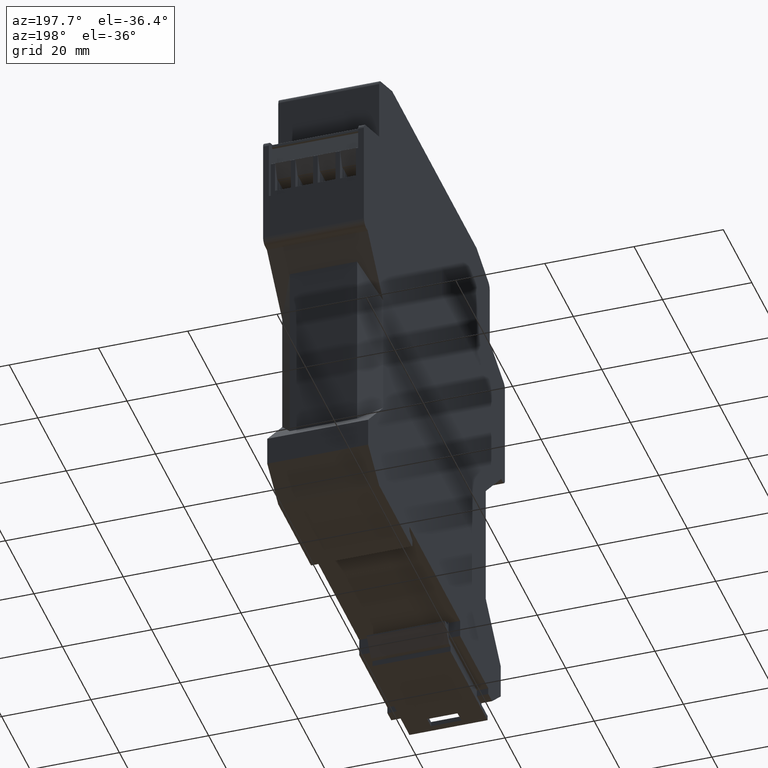
[diagram: clean part render]
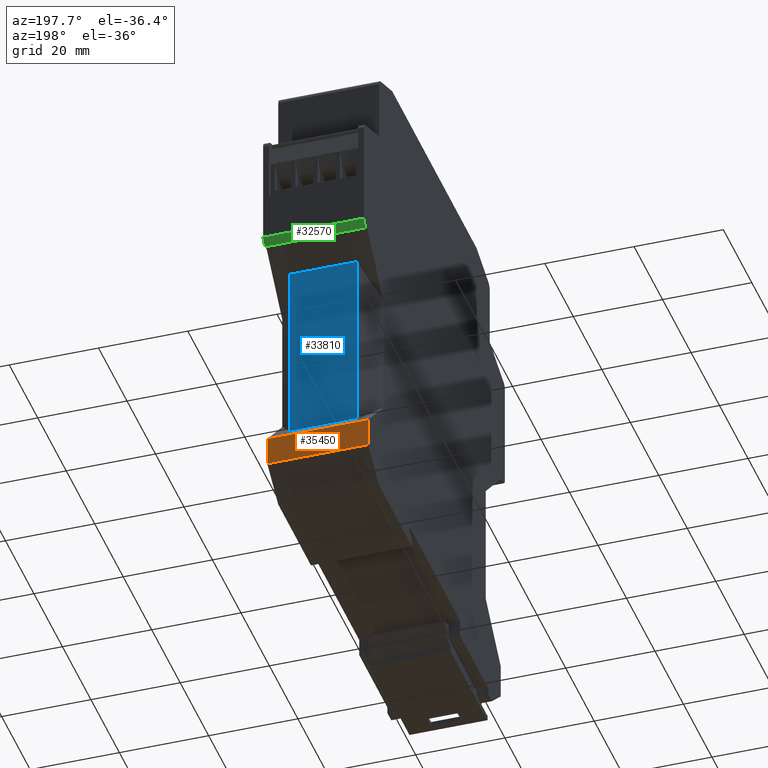
[diagram: same view with three faces highlighted in distinct colors, each labeled with its STEP entity id]
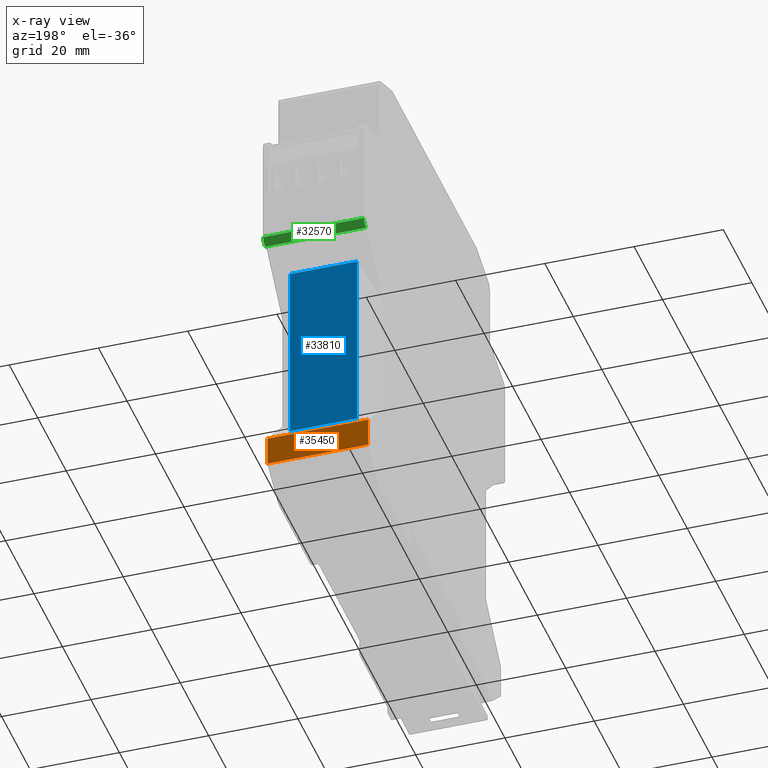
[diagram: x-ray of the same camera — body ghosted, the three highlighted faces saturated]
A machine part, auxiliary view with three faces highlighted in distinct colors.
The next image is the same camera in x-ray (body ghosted, the three faces saturated) — at least one of them is partly hidden behind the body in this view.
Their STEP definitions:

[orange] entity #35450 — the highlighted planar face has unit normal (-0, 1, -0).
#2000=CARTESIAN_POINT('',(46.5500000000977,1.40000000001026,
3.5527136788005E-15));
#2010=VERTEX_POINT('',#2000);
#2040=CARTESIAN_POINT('',(46.5500000000976,-7.99999999993772,
3.5527136788005E-15));
#2050=DIRECTION('',(0.,1.,0.));
#2060=VECTOR('',#2050,1.);
#2070=LINE('',#2040,#2060);
#2080=CARTESIAN_POINT('',(46.5500000000977,7.99999999999633,
3.5527136788005E-15));
#2090=VERTEX_POINT('',#2080);
#2100=EDGE_CURVE('',#2010,#2090,#2070,.T.);
#34630=CARTESIAN_POINT('',(46.5500000000977,1.40000000001026,26.4));
#34640=DIRECTION('',(0.,-7.5236042746967E-33,-1.));
#34650=VECTOR('',#34640,1.);
#34660=LINE('',#34630,#34650);
#34670=CARTESIAN_POINT('',(46.5500000000976,1.40000000001026,22.6));
#34680=VERTEX_POINT('',#34670);
#34690=EDGE_CURVE('',#34680,#2010,#34660,.T.);
#35040=CARTESIAN_POINT('',(46.5500000000976,7.99999999999637,26.4));
#35050=DIRECTION('',(0.,-8.71576399210444E-33,-1.));
#35060=VECTOR('',#35050,1.);
#35070=LINE('',#35040,#35060);
#35080=CARTESIAN_POINT('',(46.5500000000976,7.99999999999636,22.6));
#35090=VERTEX_POINT('',#35080);
#35100=EDGE_CURVE('',#35090,#2090,#35070,.T.);
#35290=CARTESIAN_POINT('',(46.5500000000976,1.40000000001026,22.6));
#35300=DIRECTION('',(1.,0.,0.));
#35310=DIRECTION('',(0.,-1.,-0.));
#35320=AXIS2_PLACEMENT_3D('',#35290,#35300,#35310);
#35330=PLANE('',#35320);
#35340=ORIENTED_EDGE('',*,*,#35100,.F.);
#35350=ORIENTED_EDGE('',*,*,#2100,.T.);
#35360=ORIENTED_EDGE('',*,*,#34690,.T.);
#35370=CARTESIAN_POINT('',(46.5500000000976,-8.00000000000012,22.6));
#35380=DIRECTION('',(0.,-1.,-0.));
#35390=VECTOR('',#35380,1.);
#35400=LINE('',#35370,#35390);
#35410=EDGE_CURVE('',#35090,#34680,#35400,.T.);
#35420=ORIENTED_EDGE('',*,*,#35410,.T.);
#35430=EDGE_LOOP('',(#35420,#35360,#35350,#35340));
#35440=FACE_OUTER_BOUND('',#35430,.T.);
#35450=ADVANCED_FACE('',(#35440),#35330,.T.);

[blue] entity #33810 — the highlighted planar face has unit normal (-0, 1, 0).
#3280=CARTESIAN_POINT('',(42.5500000000904,12.0000000000029,
18.847223250269));
#3290=VERTEX_POINT('',#3280);
#3460=CARTESIAN_POINT('',(42.5500000000901,53.5999999999984,
18.8472232502692));
#3470=VERTEX_POINT('',#3460);
#3500=CARTESIAN_POINT('',(42.5500000000905,-7.99999999993772,
18.847223250269));
#3510=DIRECTION('',(6.60000000000173E-15,-1.,-3.8105117766525E-15));
#3520=VECTOR('',#3510,1.);
#3530=LINE('',#3500,#3520);
#3540=EDGE_CURVE('',#3470,#3290,#3530,.T.);
#33070=CARTESIAN_POINT('',(42.5500000000901,53.5999999999984,
3.75277674973148));
#33080=VERTEX_POINT('',#33070);
#33110=CARTESIAN_POINT('',(42.5500000000901,53.5999999999984,26.4));
#33120=DIRECTION('',(0.,-8.71576399210515E-33,-1.));
#33130=VECTOR('',#33120,1.);
#33140=LINE('',#33110,#33130);
#33150=EDGE_CURVE('',#3470,#33080,#33140,.T.);
#33450=CARTESIAN_POINT('',(42.5500000000904,12.0000000000018,
3.75277674973164));
#33460=VERTEX_POINT('',#33450);
#33490=CARTESIAN_POINT('',(42.5500000000905,-7.99999999993772,
3.75277674973174));
#33500=DIRECTION('',(6.60000000000172E-15,-1.,3.8105117766525E-15));
#33510=VECTOR('',#33500,1.);
#33520=LINE('',#33490,#33510);
#33530=EDGE_CURVE('',#33080,#33460,#33520,.T.);
#33650=CARTESIAN_POINT('',(42.5500000000903,12.000000000003,22.6));
#33660=DIRECTION('',(1.,6.60000000000173E-15,0.));
#33670=DIRECTION('',(6.60000000000173E-15,-1.,0.));
#33680=AXIS2_PLACEMENT_3D('',#33650,#33660,#33670);
#33690=PLANE('',#33680);
#33700=ORIENTED_EDGE('',*,*,#33150,.F.);
#33710=ORIENTED_EDGE('',*,*,#33530,.F.);
#33720=CARTESIAN_POINT('',(42.5500000000904,12.0000000000029,26.4));
#33730=DIRECTION('',(0.,-8.7157639921045E-33,-1.));
#33740=VECTOR('',#33730,1.);
#33750=LINE('',#33720,#33740);
#33760=EDGE_CURVE('',#3290,#33460,#33750,.T.);
#33770=ORIENTED_EDGE('',*,*,#33760,.T.);
#33780=ORIENTED_EDGE('',*,*,#3540,.T.);
#33790=EDGE_LOOP('',(#33780,#33770,#33710,#33700));
#33800=FACE_OUTER_BOUND('',#33790,.T.);
#33810=ADVANCED_FACE('',(#33800),#33690,.T.);

[green] entity #32570 — the highlighted cylindrical surface (edge-blend (fillet) strip) has radius 1.5 mm, axis along (-1, -0, -0).
#2400=CARTESIAN_POINT('',(48.0000000000926,57.9000000000015,
3.5527136788005E-15));
#2410=VERTEX_POINT('',#2400);
#2440=CARTESIAN_POINT('',(48.0000000000925,59.4000000000015,
3.5527136788005E-15));
#2450=DIRECTION('',(0.,0.,-1.));
#2460=DIRECTION('',(-1.,0.,0.));
#2470=AXIS2_PLACEMENT_3D('',#2440,#2450,#2460);
#2480=CIRCLE('',#2470,1.5);
#2490=CARTESIAN_POINT('',(49.5000000000006,59.4000000000015,
3.5527136788005E-15));
#2500=VERTEX_POINT('',#2490);
#2510=EDGE_CURVE('',#2500,#2410,#2480,.T.);
#4080=CARTESIAN_POINT('',(49.5000000000006,59.4000000000015,22.6));
#4090=DIRECTION('',(0.,0.,-1.));
#4100=VECTOR('',#4090,1.);
#4110=LINE('',#4080,#4100);
#4120=CARTESIAN_POINT('',(49.5000000000006,59.4000000000015,22.6));
#4130=VERTEX_POINT('',#4120);
#4140=EDGE_CURVE('',#4130,#2500,#4110,.T.);
#32330=CARTESIAN_POINT('',(48.0000000000925,59.4000000000015,22.6));
#32340=DIRECTION('',(0.,0.,-1.));
#32350=DIRECTION('',(-1.,0.,0.));
#32360=AXIS2_PLACEMENT_3D('',#32330,#32340,#32350);
#32370=CYLINDRICAL_SURFACE('',#32360,1.5);
#32380=ORIENTED_EDGE('',*,*,#4140,.F.);
#32390=ORIENTED_EDGE('',*,*,#2510,.F.);
#32400=CARTESIAN_POINT('',(48.0000000000927,57.9000000000015,22.6));
#32410=DIRECTION('',(0.,0.,-1.));
#32420=VECTOR('',#32410,1.);
#32430=LINE('',#32400,#32420);
#32440=CARTESIAN_POINT('',(48.0000000000927,57.9000000000015,22.6));
#32450=VERTEX_POINT('',#32440);
#32460=EDGE_CURVE('',#32450,#2410,#32430,.T.);
#32470=ORIENTED_EDGE('',*,*,#32460,.T.);
#32480=CARTESIAN_POINT('',(48.0000000000925,59.4000000000015,22.6));
#32490=DIRECTION('',(0.,0.,-1.));
#32500=DIRECTION('',(-1.,0.,0.));
#32510=AXIS2_PLACEMENT_3D('',#32480,#32490,#32500);
#32520=CIRCLE('',#32510,1.5);
#32530=EDGE_CURVE('',#4130,#32450,#32520,.T.);
#32540=ORIENTED_EDGE('',*,*,#32530,.T.);
#32550=EDGE_LOOP('',(#32540,#32470,#32390,#32380));
#32560=FACE_OUTER_BOUND('',#32550,.T.);
#32570=ADVANCED_FACE('',(#32560),#32370,.T.);